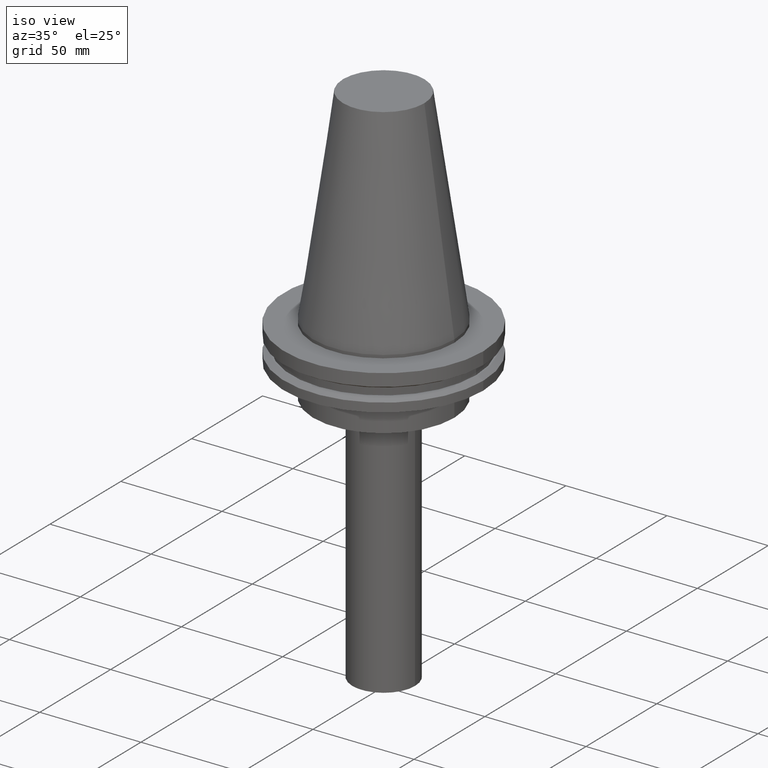
[diagram: clean part render]
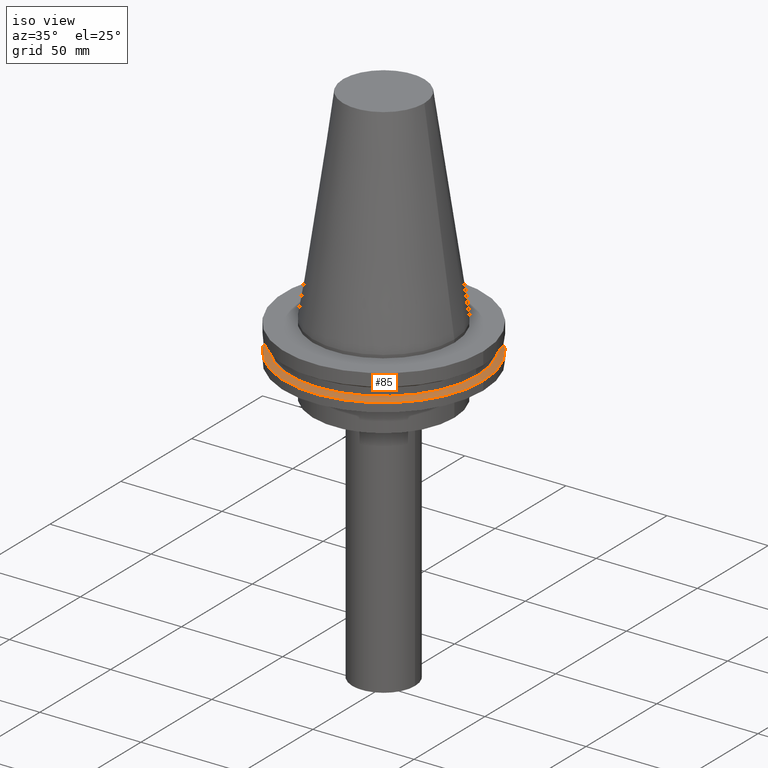
[diagram: same view with one face highlighted and labeled with its STEP entity id]
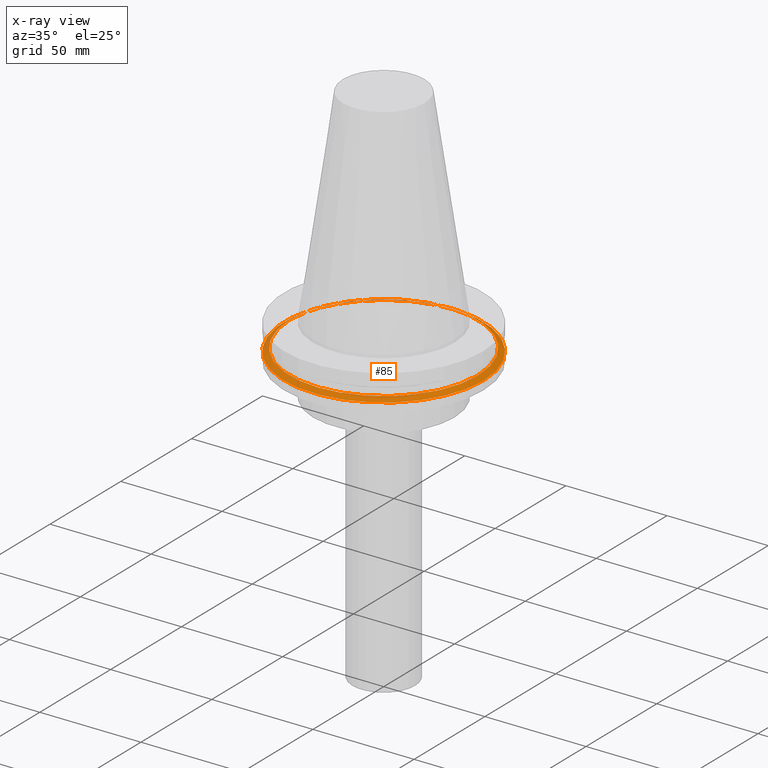
[diagram: x-ray of the same camera — body ghosted, the highlighted face saturated]
A machine part, iso view. The second image highlights one B-rep face of the part: STEP entity #85.
The next image is the same camera in x-ray: the body ghosted, the highlighted face saturated — about 4% of this face is hidden behind the body in this view.
In plain terms, the highlighted conical surface has half-angle 60 deg.
Its self-contained STEP definition (entity closure, byte-faithful):
#7 = CIRCLE ( 'NONE', #151, 49.21499999999998920 ) ;
#12 = VERTEX_POINT ( 'NONE', #183 ) ;
#32 = DIRECTION ( 'NONE',  ( 0.000000000000000000, 0.000000000000000000, -1.000000000000000000 ) ) ;
#65 = FACE_BOUND ( 'NONE', #343, .T. ) ;
#75 = EDGE_CURVE ( 'NONE', #184, #184, #7, .T. ) ;
#85 = ADVANCED_FACE ( 'NONE', ( #65, #185 ), #193, .T. ) ;
#112 = ORIENTED_EDGE ( 'NONE', *, *, #75, .T. ) ;
#123 = EDGE_LOOP ( 'NONE', ( #112 ) ) ;
#151 = AXIS2_PLACEMENT_3D ( 'NONE', #213, #286, #347 ) ;
#161 = CIRCLE ( 'NONE', #328, 46.43919780457007818 ) ;
#164 = AXIS2_PLACEMENT_3D ( 'NONE', #314, #32, #216 ) ;
#183 = CARTESIAN_POINT ( 'NONE',  ( 46.43919780457007818, 0.000000000000000000, -13.05499999999999794 ) ) ;
#184 = VERTEX_POINT ( 'NONE', #277 ) ;
#185 = FACE_OUTER_BOUND ( 'NONE', #123, .T. ) ;
#193 = CONICAL_SURFACE ( 'NONE', #164, 49.21499999999998920, 1.047197551196554333 ) ;
#208 = DIRECTION ( 'NONE',  ( 1.000000000000000000, 0.000000000000000000, 0.000000000000000000 ) ) ;
#213 = CARTESIAN_POINT ( 'NONE',  ( 0.000000000000000000, 0.000000000000000000, -14.65761014474876944 ) ) ;
#216 = DIRECTION ( 'NONE',  ( -1.000000000000000000, 0.000000000000000000, 0.000000000000000000 ) ) ;
#269 = DIRECTION ( 'NONE',  ( -0.000000000000000000, -0.000000000000000000, 1.000000000000000000 ) ) ;
#277 = CARTESIAN_POINT ( 'NONE',  ( 49.21499999999998920, 0.000000000000000000, -14.65761014474876944 ) ) ;
#286 = DIRECTION ( 'NONE',  ( -0.000000000000000000, -0.000000000000000000, 1.000000000000000000 ) ) ;
#312 = EDGE_CURVE ( 'NONE', #12, #12, #161, .T. ) ;
#314 = CARTESIAN_POINT ( 'NONE',  ( 0.000000000000000000, 0.000000000000000000, -14.65761014474876944 ) ) ;
#328 = AXIS2_PLACEMENT_3D ( 'NONE', #336, #269, #208 ) ;
#336 = CARTESIAN_POINT ( 'NONE',  ( 0.000000000000000000, 0.000000000000000000, -13.05499999999999794 ) ) ;
#343 = EDGE_LOOP ( 'NONE', ( #366 ) ) ;
#347 = DIRECTION ( 'NONE',  ( 1.000000000000000000, 0.000000000000000000, 0.000000000000000000 ) ) ;
#366 = ORIENTED_EDGE ( 'NONE', *, *, #312, .F. ) ;